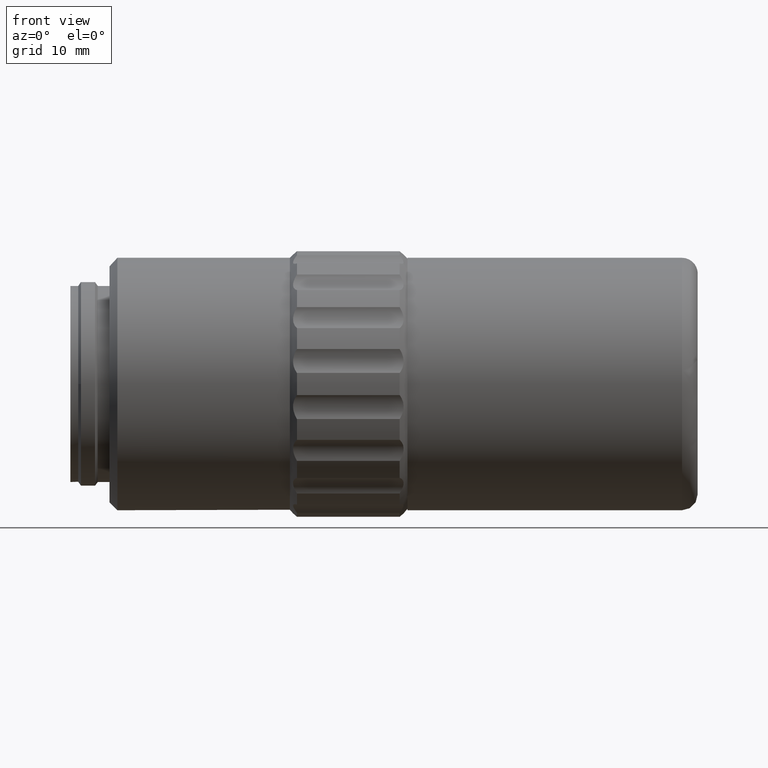
[diagram: clean part render]
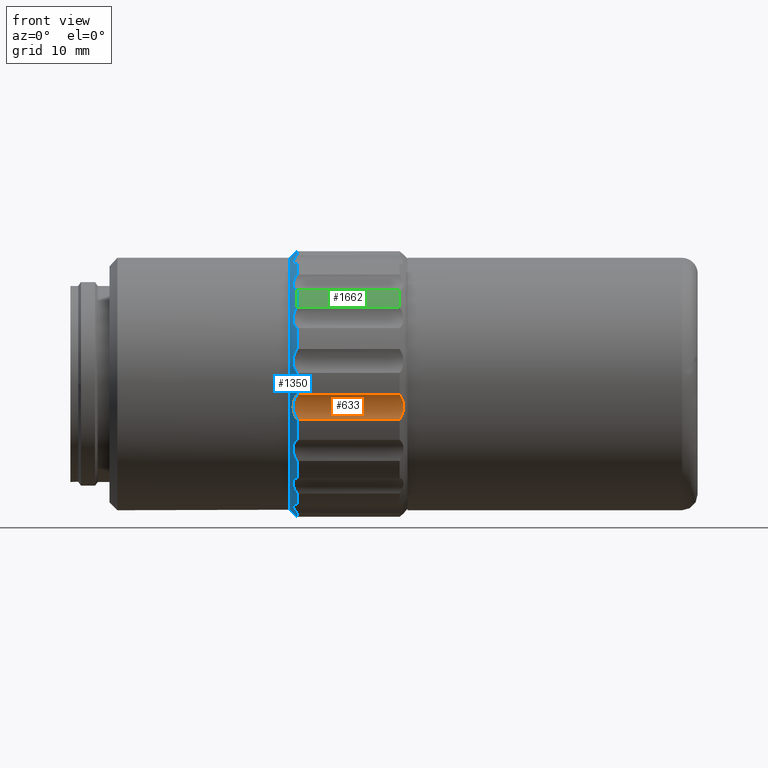
[diagram: same view with three faces highlighted in distinct colors, each labeled with its STEP entity id]
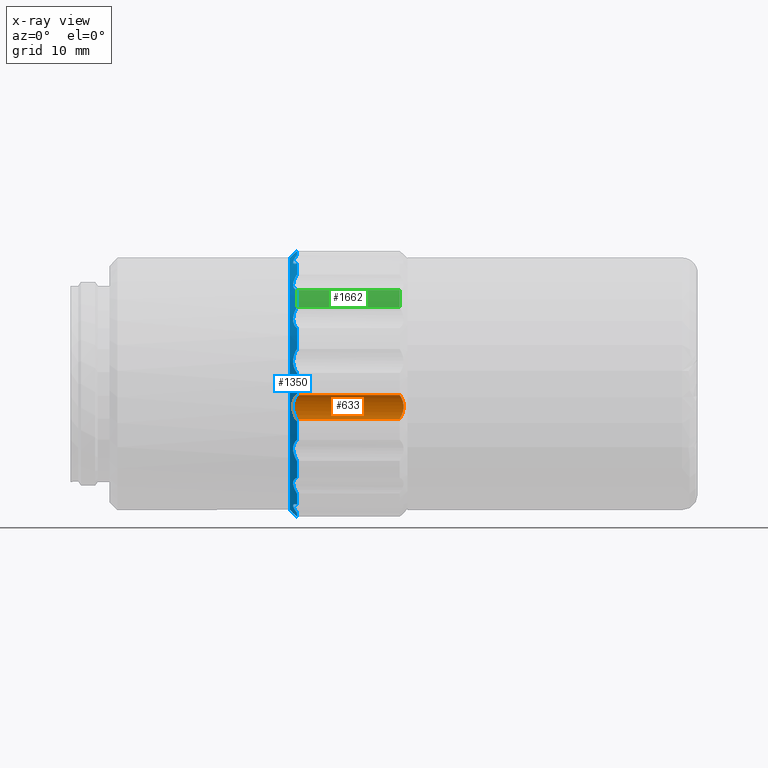
[diagram: x-ray of the same camera — body ghosted, the three highlighted faces saturated]
A machine part, front view with three faces highlighted in distinct colors.
The next image is the same camera in x-ray (body ghosted, the three faces saturated) — at least one of them is partly hidden behind the body in this view.
Their STEP definitions:

[orange] entity #633 — the highlighted cylindrical surface (edge-blend (fillet) strip) has radius 3 mm, axis along (-1, 0, 0).
#31 = CARTESIAN_POINT ( 'NONE',  ( 18.94098152749741359, 29.57133557555759751, -2.188910012077406542 ) ) ;
#46 = VECTOR ( 'NONE', #1302, 1000.000000000000000 ) ;
#66 = B_SPLINE_CURVE_WITH_KNOTS ( 'NONE', 3,
 ( #1647, #1349, #1667, #1201, #1677, #2016, #872, #1824, #720, #848, #31, #1512, #883, #1524 ),
 .UNSPECIFIED., .F., .F.,
 ( 4, 2, 2, 2, 2, 2, 4 ),
 ( 1.514782153580211930E-17, 0.0008570537395405600656, 0.001285580609310832184, 0.001714107479081104302, 0.002142634348851376637, 0.002571161218621648321, 0.003428214958162189522 ),
 .UNSPECIFIED. ) ;
#87 = CARTESIAN_POINT ( 'NONE',  ( 32.93501117040976567, 29.81087088656429884, -3.145384777659983033 ) ) ;
#198 = CARTESIAN_POINT ( 'NONE',  ( 32.44685803487877251, 29.08007986503451647, -1.416514203673299832 ) ) ;
#237 = CARTESIAN_POINT ( 'NONE',  ( 32.71832649179921759, 29.38953693794697131, -1.818341456876848783 ) ) ;
#248 = CYLINDRICAL_SURFACE ( 'NONE', #1567, 3.000000000000000000 ) ;
#256 = CARTESIAN_POINT ( 'NONE',  ( 32.44685803487880804, 29.61726367720594766, -4.463034991433898035 ) ) ;
#361 = VERTEX_POINT ( 'NONE', #198 ) ;
#525 = VERTEX_POINT ( 'NONE', #1003 ) ;
#594 = CARTESIAN_POINT ( 'NONE',  ( 32.85210940846931749, 29.57040993796760020, -2.186719745017569050 ) ) ;
#606 = CARTESIAN_POINT ( 'NONE',  ( 32.85273454226017975, 29.81471811820888362, -3.569201001427910303 ) ) ;
#633 = ADVANCED_FACE ( 'NONE', ( #1867 ), #248, .F. ) ;
#655 = EDGE_CURVE ( 'NONE', #361, #726, #669, .T. ) ;
#669 = B_SPLINE_CURVE_WITH_KNOTS ( 'NONE', 3,
 ( #1055, #1702, #237, #594, #1554, #1719, #2075, #2062, #87, #1544, #606, #1387, #1255, #920 ),
 .UNSPECIFIED., .F., .F.,
 ( 4, 2, 2, 2, 2, 2, 4 ),
 ( 9.986437839578378192E-18, 0.0008570537395405388153, 0.001285580609310806380, 0.001714107479081073727, 0.002142634348851341075, 0.002571161218621608856, 0.003428214958162145286 ),
 .UNSPECIFIED. ) ;
#720 = CARTESIAN_POINT ( 'NONE',  ( 18.85870489934783123, 29.71267404596758155, -2.588482820839966614 ) ) ;
#726 = VERTEX_POINT ( 'NONE', #256 ) ;
#748 = CARTESIAN_POINT ( 'NONE',  ( 25.94685803487879738, 29.61726367720595121, -4.463034991433957543 ) ) ;
#848 = CARTESIAN_POINT ( 'NONE',  ( 18.90565193394954946, 29.62488855559159973, -2.319880045867564800 ) ) ;
#872 = CARTESIAN_POINT ( 'NONE',  ( 18.84700383090778431, 29.79689300327163792, -3.009155866290937009 ) ) ;
#874 = CARTESIAN_POINT ( 'NONE',  ( 53.58686043487880823, 26.81721081626189829, -3.386139464505140140 ) ) ;
#883 = CARTESIAN_POINT ( 'NONE',  ( 19.19974036611872847, 29.24340012357268748, -1.604150078087035247 ) ) ;
#920 = CARTESIAN_POINT ( 'NONE',  ( 32.44685803487880804, 29.61726367720594766, -4.463034991433898035 ) ) ;
#922 = DIRECTION ( 'NONE',  ( -1.000000000000000000, 0.000000000000000000, 0.000000000000000000 ) ) ;
#990 = ORIENTED_EDGE ( 'NONE', *, *, #1498, .F. ) ;
#1003 = CARTESIAN_POINT ( 'NONE',  ( 19.34685803487881728, 29.08007986503450581, -1.416514203673286065 ) ) ;
#1009 = ORIENTED_EDGE ( 'NONE', *, *, #655, .F. ) ;
#1046 = DIRECTION ( 'NONE',  ( 0.000000000000000000, 0.000000000000000000, 1.000000000000000000 ) ) ;
#1055 = CARTESIAN_POINT ( 'NONE',  ( 32.44685803487877251, 29.08007986503451647, -1.416514203673299832 ) ) ;
#1115 = EDGE_CURVE ( 'NONE', #525, #361, #1122, .T. ) ;
#1122 = LINE ( 'NONE', #1791, #46 ) ;
#1201 = CARTESIAN_POINT ( 'NONE',  ( 18.94160666128827941, 29.81459741884976822, -3.571575765922806678 ) ) ;
#1255 = CARTESIAN_POINT ( 'NONE',  ( 32.59397570363888974, 29.70655927031907595, -4.230856126619375601 ) ) ;
#1263 = CARTESIAN_POINT ( 'NONE',  ( 19.34685803487881017, 29.61726367720593345, -4.463034991433935339 ) ) ;
#1291 = EDGE_CURVE ( 'NONE', #1593, #525, #66, .T. ) ;
#1299 = ORIENTED_EDGE ( 'NONE', *, *, #1291, .F. ) ;
#1302 = DIRECTION ( 'NONE',  ( 1.000000000000000000, -0.000000000000000000, -0.000000000000000000 ) ) ;
#1349 = CARTESIAN_POINT ( 'NONE',  ( 19.20000062573679855, 29.70640130127867096, -4.231266864385912818 ) ) ;
#1358 = VECTOR ( 'NONE', #922, 1000.000000000000000 ) ;
#1387 = CARTESIAN_POINT ( 'NONE',  ( 32.71993598786256285, 29.77132104384358158, -3.975612932441852099 ) ) ;
#1498 = EDGE_CURVE ( 'NONE', #726, #1593, #2026, .T. ) ;
#1499 = EDGE_LOOP ( 'NONE', ( #1009, #1926, #1299, #990 ) ) ;
#1512 = CARTESIAN_POINT ( 'NONE',  ( 19.07378008189505891, 29.39155459811816229, -1.821850393098590537 ) ) ;
#1524 = CARTESIAN_POINT ( 'NONE',  ( 19.34685803487881728, 29.08007986503450581, -1.416514203673286065 ) ) ;
#1544 = CARTESIAN_POINT ( 'NONE',  ( 32.88806413580805810, 29.82024706863964880, -3.427813229224472291 ) ) ;
#1554 = CARTESIAN_POINT ( 'NONE',  ( 32.88671825240740532, 29.62277607563510173, -2.314480119284870518 ) ) ;
#1567 = AXIS2_PLACEMENT_3D ( 'NONE', #874, #1839, #1046 ) ;
#1593 = VERTEX_POINT ( 'NONE', #1263 ) ;
#1647 = CARTESIAN_POINT ( 'NONE',  ( 19.34685803487881017, 29.61726367720593345, -4.463034991433935339 ) ) ;
#1667 = CARTESIAN_POINT ( 'NONE',  ( 19.07538957795835444, 29.77062519033893651, -3.979600334337186407 ) ) ;
#1677 = CARTESIAN_POINT ( 'NONE',  ( 18.90699781735017737, 29.82010887047673009, -3.433610011084523794 ) ) ;
#1702 = CARTESIAN_POINT ( 'NONE',  ( 32.59371544402079479, 29.24311120064134784, -1.603818139432597878 ) ) ;
#1719 = CARTESIAN_POINT ( 'NONE',  ( 32.93404516599887444, 29.71048298862090320, -2.580766064489512512 ) ) ;
#1791 = CARTESIAN_POINT ( 'NONE',  ( 53.58686043487880823, 29.08007986503449871, -1.416514203673273409 ) ) ;
#1824 = CARTESIAN_POINT ( 'NONE',  ( 18.84671480941285537, 29.74726016049911692, -2.726265681694555187 ) ) ;
#1839 = DIRECTION ( 'NONE',  ( -1.000000000000000000, 0.000000000000000000, 0.000000000000000000 ) ) ;
#1867 = FACE_OUTER_BOUND ( 'NONE', #1499, .T. ) ;
#1926 = ORIENTED_EDGE ( 'NONE', *, *, #1115, .F. ) ;
#2016 = CARTESIAN_POINT ( 'NONE',  ( 18.85967090375870825, 29.81145125225689441, -3.153385542406657915 ) ) ;
#2026 = LINE ( 'NONE', #748, #1358 ) ;
#2062 = CARTESIAN_POINT ( 'NONE',  ( 32.94700126034471310, 29.79624668935391441, -3.004082092195002662 ) ) ;
#2075 = CARTESIAN_POINT ( 'NONE',  ( 32.94671223884979838, 29.74613216397480997, -2.721276841238304378 ) ) ;

[blue] entity #1350 — the highlighted conical surface has half-angle 45 deg.
#4 = AXIS2_PLACEMENT_3D ( 'NONE', #1645, #1620, #160 ) ;
#11 = CARTESIAN_POINT ( 'NONE',  ( 18.84700383090777365, 29.74613216397480642, 2.721276841238314592 ) ) ;
#14 = CARTESIAN_POINT ( 'NONE',  ( 19.34685803487881017, 61.45570754086770648, -7.125210880294338800 ) ) ;
#16 = EDGE_CURVE ( 'NONE', #192, #1939, #2033, .T. ) ;
#17 = ORIENTED_EDGE ( 'NONE', *, *, #432, .T. ) ;
#23 = CARTESIAN_POINT ( 'NONE',  ( 19.34685803487881728, 41.68421451916362486, 16.43753695927285108 ) ) ;
#24 = B_SPLINE_CURVE_WITH_KNOTS ( 'NONE', 3,
 ( #2013, #1048, #231, #733, #889, #1384, #1528, #2020, #564, #910, #1742, #1391, #251, #424 ),
 .UNSPECIFIED., .F., .F.,
 ( 4, 2, 2, 2, 2, 2, 4 ),
 ( 0.000000000000000000, 0.0008570537395405729677, 0.001285580609310859506, 0.001714107479081145935, 0.002142634348851432148, 0.002571161218621719011, 0.003428214958162278860 ),
 .UNSPECIFIED. ) ;
#25 = CARTESIAN_POINT ( 'NONE',  ( 18.94098152749737451, 46.72175410136633644, 16.57981987161946691 ) ) ;
#31 = CARTESIAN_POINT ( 'NONE',  ( 18.94098152749741359, 29.57133557555759751, -2.188910012077406542 ) ) ;
#33 = CARTESIAN_POINT ( 'NONE',  ( 18.44685803487879738, 46.02096199999999726, 0.000000000000000000 ) ) ;
#34 = EDGE_CURVE ( 'NONE', #1644, #948, #1272, .T. ) ;
#35 = CARTESIAN_POINT ( 'NONE',  ( 19.34685803487878175, 41.68421451916363907, -16.43753695927278713 ) ) ;
#37 = CARTESIAN_POINT ( 'NONE',  ( 18.90565193394954235, 60.63478551978838738, 7.787761549644985237 ) ) ;
#47 = CARTESIAN_POINT ( 'NONE',  ( 19.34685803487878886, 55.71814035268526766, -13.96297718956139278 ) ) ;
#52 = VERTEX_POINT ( 'NONE', #1519 ) ;
#53 = CARTESIAN_POINT ( 'NONE',  ( 18.94160666128825099, 46.72407182862871622, -16.58035111081103352 ) ) ;
#56 = EDGE_CURVE ( 'NONE', #1637, #1922, #1729, .T. ) ;
#65 = CARTESIAN_POINT ( 'NONE',  ( 18.84671480941278787, 40.24512641806278879, -15.45657204746853353 ) ) ;
#66 = B_SPLINE_CURVE_WITH_KNOTS ( 'NONE', 3,
 ( #1647, #1349, #1667, #1201, #1677, #2016, #872, #1824, #720, #848, #31, #1512, #883, #1524 ),
 .UNSPECIFIED., .F., .F.,
 ( 4, 2, 2, 2, 2, 2, 4 ),
 ( 1.514782153580211930E-17, 0.0008570537395405600656, 0.001285580609310832184, 0.001714107479081104302, 0.002142634348851376637, 0.002571161218621648321, 0.003428214958162189522 ),
 .UNSPECIFIED. ) ;
#69 = CARTESIAN_POINT ( 'NONE',  ( 19.34685803487879596, 46.02096199999999726, 0.000000000000000000 ) ) ;
#72 = CARTESIAN_POINT ( 'NONE',  ( 18.84700383090778786, 60.38356800619005327, -8.123483399945444106 ) ) ;
#75 = CARTESIAN_POINT ( 'NONE',  ( 19.34685803487882438, 59.90894840009008959, -9.804276299192844490 ) ) ;
#76 = DIRECTION ( 'NONE',  ( 0.000000000000000000, -1.061242597068164396E-14, 1.000000000000000000 ) ) ;
#77 = CARTESIAN_POINT ( 'NONE',  ( 18.90565193394954946, 62.41703544440839835, 2.319880045867563467 ) ) ;
#78 = CARTESIAN_POINT ( 'NONE',  ( 19.20000062573676658, 55.79883465147822363, 13.72813594343331900 ) ) ;
#81 = CARTESIAN_POINT ( 'NONE',  ( 18.84700383090775588, 35.52685220674475630, -12.73377765964754893 ) ) ;
#84 = FACE_BOUND ( 'NONE', #1792, .T. ) ;
#85 = CARTESIAN_POINT ( 'NONE',  ( 18.85967090375870825, 62.23047274774310722, 3.153385542406657915 ) ) ;
#86 = B_SPLINE_CURVE_WITH_KNOTS ( 'NONE', 3,
 ( #1136, #1092, #1598, #288, #1943, #2053, #1781, #770, #1425, #1404, #141, #1611, #609, #1923 ),
 .UNSPECIFIED., .F., .F.,
 ( 4, 2, 2, 2, 2, 2, 4 ),
 ( 4.906538933386797396E-18, 0.0008570537395405932422, 0.001285580609310881190, 0.001714107479081169137, 0.002142634348851456434, 0.002571161218621744165, 0.003428214958162342178 ),
 .UNSPECIFIED. ) ;
#89 = CARTESIAN_POINT ( 'NONE',  ( 18.90699781735015961, 34.94694193895058731, 12.31354536760547447 ) ) ;
#102 = CARTESIAN_POINT ( 'NONE',  ( 18.90565193394945709, 31.40713848021169241, -7.787761549644949710 ) ) ;
#109 = CARTESIAN_POINT ( 'NONE',  ( 18.90699781735014895, 39.82626761767229340, 15.35848564612280498 ) ) ;
#112 = B_SPLINE_CURVE_WITH_KNOTS ( 'NONE', 3,
 ( #1672, #219, #208, #866, #1376, #188, #357, #1150, #1316, #656, #1970, #1639, #1794, #47 ),
 .UNSPECIFIED., .F., .F.,
 ( 4, 2, 2, 2, 2, 2, 4 ),
 ( 7.949501638480626889E-18, 0.0008570537395405634267, 0.001285580609310841291, 0.001714107479081119047, 0.002142634348851396586, 0.002571161218621674342, 0.003428214958162214675 ),
 .UNSPECIFIED. ) ;
#114 = EDGE_CURVE ( 'NONE', #169, #689, #24, .T. ) ;
#115 = CARTESIAN_POINT ( 'NONE',  ( 18.85870489934780991, 56.84999067884827895, 12.46565831306566352 ) ) ;
#127 = VERTEX_POINT ( 'NONE', #1723 ) ;
#141 = CARTESIAN_POINT ( 'NONE',  ( 18.94098152749734965, 52.35012353516404460, 15.34024937236955033 ) ) ;
#160 = DIRECTION ( 'NONE',  ( 0.000000000000000000, 0.000000000000000000, 1.000000000000000000 ) ) ;
#163 = VERTEX_POINT ( 'NONE', #1565 ) ;
#168 = CARTESIAN_POINT ( 'NONE',  ( 19.07538957795836509, 59.93018010859524480, 9.297543592584476713 ) ) ;
#169 = VERTEX_POINT ( 'NONE', #454 ) ;
#171 = ORIENTED_EDGE ( 'NONE', *, *, #1646, .T. ) ;
#177 = CARTESIAN_POINT ( 'NONE',  ( 18.90699781735014895, 45.45276486285488460, 16.55096588861032458 ) ) ;
#179 = CARTESIAN_POINT ( 'NONE',  ( 19.34685803487879596, 46.02096199999999726, 0.000000000000000000 ) ) ;
#186 = DIRECTION ( 'NONE',  ( 1.000000000000000000, 0.000000000000000000, 0.000000000000000000 ) ) ;
#188 = CARTESIAN_POINT ( 'NONE',  ( 18.85967090375868338, 56.85662936152230884, -12.46115531925904740 ) ) ;
#192 = VERTEX_POINT ( 'NONE', #1912 ) ;
#199 = CARTESIAN_POINT ( 'NONE',  ( 19.20000062573681632, 59.90445580054583274, 9.555998637511375904 ) ) ;
#201 = ORIENTED_EDGE ( 'NONE', *, *, #1490, .T. ) ;
#208 = CARTESIAN_POINT ( 'NONE',  ( 19.07538957795833667, 57.59256539127559904, -12.08340433005123060 ) ) ;
#209 = CARTESIAN_POINT ( 'NONE',  ( 18.84700383090778786, 60.23740799466897755, 8.376639965934806753 ) ) ;
#212 = CIRCLE ( 'NONE', #2017, 17.00000000000000000 ) ;
#216 = CARTESIAN_POINT ( 'NONE',  ( 18.94160666128827231, 62.22732658115023696, 3.571575765922809342 ) ) ;
#217 = B_SPLINE_CURVE_WITH_KNOTS ( 'NONE', 3,
 ( #1555, #78, #1090, #1896, #1081, #730, #2052, #1229, #115, #1736, #1381, #1413, #1403, #2036 ),
 .UNSPECIFIED., .F., .F.,
 ( 4, 2, 2, 2, 2, 2, 4 ),
 ( 3.469446951953614189E-18, 0.0008570537395405549699, 0.001285580609310832184, 0.001714107479081109506, 0.002142634348851387045, 0.002571161218621663934, 0.003428214958162216410 ),
 .UNSPECIFIED. ) ;
#219 = CARTESIAN_POINT ( 'NONE',  ( 19.20000062573680211, 57.84262694411021499, -12.01319058448290278 ) ) ;
#220 = CARTESIAN_POINT ( 'NONE',  ( 18.90565193394951393, 34.95203119838301831, -12.31632407541565755 ) ) ;
#221 = CARTESIAN_POINT ( 'NONE',  ( 19.07378008189506247, 59.93088999195954614, -9.293558664531964553 ) ) ;
#231 = CARTESIAN_POINT ( 'NONE',  ( 19.07538957795832602, 52.76194463661676082, -15.31240733331347670 ) ) ;
#234 = DIRECTION ( 'NONE',  ( 1.000000000000000000, -0.000000000000000000, -0.000000000000000000 ) ) ;
#235 = CARTESIAN_POINT ( 'NONE',  ( 19.34685803487881017, 62.42466032279406107, 4.463034991433929122 ) ) ;
#240 = CARTESIAN_POINT ( 'NONE',  ( 19.20000062573676658, 36.24308934852177799, -13.72813594343331900 ) ) ;
#241 = DIRECTION ( 'NONE',  ( 1.000000000000000000, -0.000000000000000000, -0.000000000000000000 ) ) ;
#249 = CIRCLE ( 'NONE', #1608, 17.00000000000000000 ) ;
#251 = CARTESIAN_POINT ( 'NONE',  ( 19.19974036611866097, 50.51413447943100010, -16.24411527478352468 ) ) ;
#259 = CARTESIAN_POINT ( 'NONE',  ( 19.34685803487880307, 47.56772114077768521, 16.92948717948718595 ) ) ;
#263 = AXIS2_PLACEMENT_3D ( 'NONE', #374, #241, #573 ) ;
#267 = CARTESIAN_POINT ( 'NONE',  ( 18.85967090375863009, 31.86752573897104313, -8.507192313874572420 ) ) ;
#275 = CARTESIAN_POINT ( 'NONE',  ( 19.34685803487881017, 32.13297559990991914, 9.804276299192830280 ) ) ;
#288 = CARTESIAN_POINT ( 'NONE',  ( 18.94160666128821546, 51.03106894574500529, 15.82091131322982669 ) ) ;
#292 = VERTEX_POINT ( 'NONE', #1934 ) ;
#293 = VERTEX_POINT ( 'NONE', #1651 ) ;
#301 = CARTESIAN_POINT ( 'NONE',  ( 19.19974036611871782, 41.52778952056896600, 16.24411527478357797 ) ) ;
#302 = ORIENTED_EDGE ( 'NONE', *, *, #994, .F. ) ;
#303 = ORIENTED_EDGE ( 'NONE', *, *, #923, .F. ) ;
#308 = AXIS2_PLACEMENT_3D ( 'NONE', #69, #2018, #397 ) ;
#311 = CARTESIAN_POINT ( 'NONE',  ( 18.94098152749739583, 41.00885879755391983, 15.81961940227120600 ) ) ;
#312 = VERTEX_POINT ( 'NONE', #1449 ) ;
#326 = VERTEX_POINT ( 'NONE', #1602 ) ;
#329 = CARTESIAN_POINT ( 'NONE',  ( 19.34685803487879596, 46.02096199999999726, 0.000000000000000000 ) ) ;
#339 = EDGE_CURVE ( 'NONE', #340, #1774, #399, .T. ) ;
#340 = VERTEX_POINT ( 'NONE', #1516 ) ;
#342 = CONICAL_SURFACE ( 'NONE', #1904, 17.00000000000002132, 0.7853981633974482790 ) ;
#346 = CARTESIAN_POINT ( 'NONE',  ( 18.85870489934783123, 29.81087088656429884, 3.145384777660000353 ) ) ;
#353 = CARTESIAN_POINT ( 'NONE',  ( 19.34685803487879596, 46.02096199999999726, 0.000000000000000000 ) ) ;
#355 = ORIENTED_EDGE ( 'NONE', *, *, #1601, .F. ) ;
#357 = CARTESIAN_POINT ( 'NONE',  ( 18.84700383090775944, 56.73900192251910113, -12.54587797077276257 ) ) ;
#363 = CIRCLE ( 'NONE', #2093, 16.10000000000000142 ) ;
#364 = CARTESIAN_POINT ( 'NONE',  ( 18.84700383090771325, 40.51493292579078798, -15.55503383706367870 ) ) ;
#374 = CARTESIAN_POINT ( 'NONE',  ( 19.34685803487879596, 46.02096199999999726, 0.000000000000000000 ) ) ;
#376 = CARTESIAN_POINT ( 'NONE',  ( 19.34685803487881017, 47.56772114077768521, -16.92948717948718951 ) ) ;
#378 = CARTESIAN_POINT ( 'NONE',  ( 18.85870489934783123, 62.32924995403242008, 2.588482820839966614 ) ) ;
#379 = CARTESIAN_POINT ( 'NONE',  ( 19.34685803487881017, 47.56772114077768521, -16.92948717948718951 ) ) ;
#387 = CARTESIAN_POINT ( 'NONE',  ( 19.20000062573674526, 41.52806624538894908, -16.24445744886878629 ) ) ;
#388 = DIRECTION ( 'NONE',  ( 1.000000000000000000, -0.000000000000000000, -0.000000000000000000 ) ) ;
#392 = CARTESIAN_POINT ( 'NONE',  ( 18.94160666128828296, 60.73152217994228153, -7.681264582162548926 ) ) ;
#397 = DIRECTION ( 'NONE',  ( 0.000000000000000000, -1.591863895602246436E-14, 1.000000000000000000 ) ) ;
#399 = B_SPLINE_CURVE_WITH_KNOTS ( 'NONE', 3,
 ( #1946, #1485, #1139, #668, #177, #1783, #832, #1475, #1317, #1163, #25, #1195, #1016, #876 ),
 .UNSPECIFIED., .F., .F.,
 ( 4, 2, 2, 2, 2, 2, 4 ),
 ( 3.469446951953613804E-18, 0.0008570537395405930254, 0.001285580609310878154, 0.001714107479081163283, 0.002142634348851448628, 0.002571161218621733323, 0.003428214958162322228 ),
 .UNSPECIFIED. ) ;
#401 = CARTESIAN_POINT ( 'NONE',  ( 18.90699781735015605, 35.81747045796282691, -13.04400552683793713 ) ) ;
#402 = CARTESIAN_POINT ( 'NONE',  ( 18.90699781735018803, 60.63861748527882156, -7.783409789179927429 ) ) ;
#404 = ORIENTED_EDGE ( 'NONE', *, *, #1784, .T. ) ;
#406 = DIRECTION ( 'NONE',  ( 0.000000000000000000, 0.000000000000000000, -1.000000000000000000 ) ) ;
#408 = CARTESIAN_POINT ( 'NONE',  ( 18.90699781735018448, 62.22181512952326443, 3.433610011084525571 ) ) ;
#415 = CARTESIAN_POINT ( 'NONE',  ( 19.20000062573680566, 61.23844647888725490, -7.245459005800721108 ) ) ;
#418 = DIRECTION ( 'NONE',  ( 1.000000000000000000, -0.000000000000000000, 0.000000000000000000 ) ) ;
#419 = CARTESIAN_POINT ( 'NONE',  ( 18.84671480941285893, 62.29466383950088471, 2.726265681694554743 ) ) ;
#423 = CARTESIAN_POINT ( 'NONE',  ( 19.07378008189503760, 34.45315972681315486, -12.08479540418656484 ) ) ;
#424 = CARTESIAN_POINT ( 'NONE',  ( 19.34685803487878175, 50.35770948083634124, -16.43753695927276937 ) ) ;
#426 = CARTESIAN_POINT ( 'NONE',  ( 18.90565193394950327, 45.45844958071402431, -16.54982318938171559 ) ) ;
#432 = EDGE_CURVE ( 'NONE', #450, #1399, #112, .T. ) ;
#436 = CARTESIAN_POINT ( 'NONE',  ( 18.90565193394951393, 40.88917787025663841, 15.74413730464017647 ) ) ;
#438 = B_SPLINE_CURVE_WITH_KNOTS ( 'NONE', 3,
 ( #618, #1064, #905, #1089, #1895, #587, #1237, #1401, #1266, #1883, #1080, #1727, #1735, #275 ),
 .UNSPECIFIED., .F., .F.,
 ( 4, 2, 2, 2, 2, 2, 4 ),
 ( 8.887813025444319855E-18, 0.0008570537395405515005, 0.001285580609310827847, 0.001714107479081106254, 0.002142634348851384877, 0.002571161218621663067, 0.003428214958162207303 ),
 .UNSPECIFIED. ) ;
#450 = VERTEX_POINT ( 'NONE', #510 ) ;
#453 = CARTESIAN_POINT ( 'NONE',  ( 18.94160666128827231, 62.47151406203237656, -2.186719745017577043 ) ) ;
#454 = CARTESIAN_POINT ( 'NONE',  ( 19.34685803487879596, 53.26466578228018989, -15.37949139323468017 ) ) ;
#457 = VERTEX_POINT ( 'NONE', #35 ) ;
#476 = CARTESIAN_POINT ( 'NONE',  ( 18.85870489934780281, 40.63989956541260540, 15.61104309072567098 ) ) ;
#477 = ORIENTED_EDGE ( 'NONE', *, *, #1589, .T. ) ;
#484 = CARTESIAN_POINT ( 'NONE',  ( 19.07378008189504826, 62.27060295615642360, -3.975612932441878744 ) ) ;
#489 = ORIENTED_EDGE ( 'NONE', *, *, #1653, .F. ) ;
#501 = CARTESIAN_POINT ( 'NONE',  ( 19.34685803487881728, 59.90894840009004696, 9.804276299192840938 ) ) ;
#505 = ORIENTED_EDGE ( 'NONE', *, *, #1271, .T. ) ;
#509 = CARTESIAN_POINT ( 'NONE',  ( 19.07538957795835088, 29.38953693794697841, 1.818341456876844786 ) ) ;
#510 = CARTESIAN_POINT ( 'NONE',  ( 19.34685803487880307, 58.08791284195767446, -11.97450196783888110 ) ) ;
#514 = VERTEX_POINT ( 'NONE', #23 ) ;
#525 = VERTEX_POINT ( 'NONE', #1003 ) ;
#526 = CIRCLE ( 'NONE', #1539, 17.00000000000000000 ) ;
#527 = ORIENTED_EDGE ( 'NONE', *, *, #114, .T. ) ;
#528 = CARTESIAN_POINT ( 'NONE',  ( 19.34685803487878175, 41.68421451916363907, -16.43753695927278713 ) ) ;
#531 = ORIENTED_EDGE ( 'NONE', *, *, #2094, .T. ) ;
#546 = CARTESIAN_POINT ( 'NONE',  ( 18.84671480941283406, 35.30699293778216941, -12.54897458209228844 ) ) ;
#548 = CARTESIAN_POINT ( 'NONE',  ( 19.07538957795836509, 61.02747999826901548, -7.396964432529753886 ) ) ;
#550 = ORIENTED_EDGE ( 'NONE', *, *, #1906, .T. ) ;
#551 = DIRECTION ( 'NONE',  ( 1.000000000000000000, -0.000000000000000000, -0.000000000000000000 ) ) ;
#555 = CARTESIAN_POINT ( 'NONE',  ( 19.07538957795832246, 36.13051957456375618, -13.49406587643664501 ) ) ;
#559 = CARTESIAN_POINT ( 'NONE',  ( 18.94160666128820125, 41.01085505425493949, -15.82091131322980715 ) ) ;
#564 = CARTESIAN_POINT ( 'NONE',  ( 18.85870489934776018, 51.40202443458736070, -15.61104309072563190 ) ) ;
#572 = CARTESIAN_POINT ( 'NONE',  ( 18.94098152749737807, 35.90049711072168037, 13.15133936029216422 ) ) ;
#573 = DIRECTION ( 'NONE',  ( 0.000000000000000000, 0.000000000000000000, 1.000000000000000000 ) ) ;
#580 = EDGE_CURVE ( 'NONE', #326, #1774, #1149, .T. ) ;
#586 = CARTESIAN_POINT ( 'NONE',  ( 19.34685803487881017, 62.96184413496550292, 1.416514203673278960 ) ) ;
#587 = CARTESIAN_POINT ( 'NONE',  ( 18.85967090375871180, 31.57679921079038721, 8.003639195957687136 ) ) ;
#601 = AXIS2_PLACEMENT_3D ( 'NONE', #779, #1596, #652 ) ;
#609 = CARTESIAN_POINT ( 'NONE',  ( 19.19974036611868229, 53.02050821910749079, 15.33186983759483724 ) ) ;
#618 = CARTESIAN_POINT ( 'NONE',  ( 19.34685803487881017, 30.58621645913229514, 7.125210880294345905 ) ) ;
#625 = ORIENTED_EDGE ( 'NONE', *, *, #16, .F. ) ;
#635 = CIRCLE ( 'NONE', #2057, 17.00000000000000000 ) ;
#638 = VERTEX_POINT ( 'NONE', #379 ) ;
#642 = CARTESIAN_POINT ( 'NONE',  ( 19.34685803487880307, 58.08791284195768867, 11.97450196783888821 ) ) ;
#644 = CARTESIAN_POINT ( 'NONE',  ( 19.19974036611872137, 62.33536472968093278, -4.230856126619383595 ) ) ;
#648 = ORIENTED_EDGE ( 'NONE', *, *, #1020, .T. ) ;
#651 = DIRECTION ( 'NONE',  ( 0.000000000000000000, 8.163404592832033571E-15, 1.000000000000000000 ) ) ;
#652 = DIRECTION ( 'NONE',  ( 0.000000000000000000, 9.796085511398439970E-15, 1.000000000000000000 ) ) ;
#656 = CARTESIAN_POINT ( 'NONE',  ( 18.90565193394950683, 56.22807377565811748, -13.03947610223928244 ) ) ;
#657 = AXIS2_PLACEMENT_3D ( 'NONE', #329, #1801, #2084 ) ;
#661 = ORIENTED_EDGE ( 'NONE', *, *, #1429, .T. ) ;
#668 = CARTESIAN_POINT ( 'NONE',  ( 18.94160666128825099, 45.31785217137125699, 16.58035111081102997 ) ) ;
#671 = ORIENTED_EDGE ( 'NONE', *, *, #843, .F. ) ;
#678 = CARTESIAN_POINT ( 'NONE',  ( 18.90699781735018092, 29.62277607563511239, 2.314480119284873627 ) ) ;
#681 = CARTESIAN_POINT ( 'NONE',  ( 19.34685803487878175, 32.13297559991000441, -9.804276299192858701 ) ) ;
#689 = VERTEX_POINT ( 'NONE', #738 ) ;
#697 = DIRECTION ( 'NONE',  ( 1.000000000000000000, -0.000000000000000000, -0.000000000000000000 ) ) ;
#699 = CARTESIAN_POINT ( 'NONE',  ( 18.84671480941285537, 29.79624668935392506, 3.004082092195018650 ) ) ;
#702 = B_SPLINE_CURVE_WITH_KNOTS ( 'NONE', 3,
 ( #745, #1053, #1699, #892, #739, #267, #1066, #768, #1573, #102, #2063, #1388, #1747, #1238 ),
 .UNSPECIFIED., .F., .F.,
 ( 4, 2, 2, 2, 2, 2, 4 ),
 ( 3.469446951953614189E-18, 0.0008570537395405861949, 0.001285580609310878371, 0.001714107479081170438, 0.002142634348851462506, 0.002571161218621756742, 0.003428214958162340443 ),
 .UNSPECIFIED. ) ;
#708 = AXIS2_PLACEMENT_3D ( 'NONE', #1947, #1154, #1992 ) ;
#709 = CARTESIAN_POINT ( 'NONE',  ( 18.90699781735015250, 46.58915913714510992, -16.55096588861032814 ) ) ;
#712 = CIRCLE ( 'NONE', #1725, 17.00000000000000000 ) ;
#718 = VERTEX_POINT ( 'NONE', #1073 ) ;
#719 = CARTESIAN_POINT ( 'NONE',  ( 18.85870489934777439, 40.10850990309084096, -15.41763307084374190 ) ) ;
#720 = CARTESIAN_POINT ( 'NONE',  ( 18.85870489934783123, 29.71267404596758155, -2.588482820839966614 ) ) ;
#724 = DIRECTION ( 'NONE',  ( 1.000000000000000000, -0.000000000000000000, -0.000000000000000000 ) ) ;
#725 = DIRECTION ( 'NONE',  ( 1.000000000000000000, -0.000000000000000000, -0.000000000000000000 ) ) ;
#730 = CARTESIAN_POINT ( 'NONE',  ( 18.85967090375867983, 56.41121047876222860, 12.83490613950239023 ) ) ;
#732 = CARTESIAN_POINT ( 'NONE',  ( 19.34685803487880307, 33.95401115804230585, -11.97450196783888821 ) ) ;
#733 = CARTESIAN_POINT ( 'NONE',  ( 18.94160666128823678, 52.35248318087396058, -15.33995586450727266 ) ) ;
#738 = CARTESIAN_POINT ( 'NONE',  ( 19.34685803487878175, 50.35770948083634124, -16.43753695927276937 ) ) ;
#739 = CARTESIAN_POINT ( 'NONE',  ( 18.90699781735010632, 31.97150365186636378, -8.767556099430423799 ) ) ;
#740 = CARTESIAN_POINT ( 'NONE',  ( 18.84700383090775588, 35.30292207748090760, 12.54587797077276079 ) ) ;
#743 = EDGE_CURVE ( 'NONE', #1686, #127, #438, .T. ) ;
#745 = CARTESIAN_POINT ( 'NONE',  ( 19.34685803487878175, 32.13297559991000441, -9.804276299192858701 ) ) ;
#768 = CARTESIAN_POINT ( 'NONE',  ( 18.84671480941278077, 31.66112224774806450, -8.127785578975515790 ) ) ;
#770 = CARTESIAN_POINT ( 'NONE',  ( 18.84671480941278787, 51.79679758193721284, 15.45657204746854241 ) ) ;
#772 = AXIS2_PLACEMENT_3D ( 'NONE', #1732, #786, #2058 ) ;
#775 = CARTESIAN_POINT ( 'NONE',  ( 19.07378008189504470, 41.33912331703041332, 16.06040833662847689 ) ) ;
#779 = CARTESIAN_POINT ( 'NONE',  ( 19.34685803487879596, 46.02096199999999726, 0.000000000000000000 ) ) ;
#781 = CARTESIAN_POINT ( 'NONE',  ( 19.34685803487880307, 62.42466032279407528, -4.463034991433911358 ) ) ;
#786 = DIRECTION ( 'NONE',  ( 1.000000000000000000, -0.000000000000000000, -0.000000000000000000 ) ) ;
#794 = CARTESIAN_POINT ( 'NONE',  ( 18.94098152749741004, 62.22720588179113577, -3.569201001427937392 ) ) ;
#801 = B_SPLINE_CURVE_WITH_KNOTS ( 'NONE', 3,
 ( #501, #199, #168, #844, #823, #1343, #209, #1464, #1164, #37, #1320, #1810, #1972, #833 ),
 .UNSPECIFIED., .F., .F.,
 ( 4, 2, 2, 2, 2, 2, 4 ),
 ( 9.341771812940338307E-18, 0.0008570537395405652698, 0.001285580609310843243, 0.001714107479081121216, 0.002142634348851399622, 0.002571161218621675210, 0.003428214958162209905 ),
 .UNSPECIFIED. ) ;
#805 = EDGE_CURVE ( 'NONE', #457, #1786, #1848, .T. ) ;
#823 = CARTESIAN_POINT ( 'NONE',  ( 18.90699781735019158, 60.07042034813372311, 8.767556099430422023 ) ) ;
#832 = CARTESIAN_POINT ( 'NONE',  ( 18.84700383090774167, 45.87480198847890733, 16.50012336588021356 ) ) ;
#833 = CARTESIAN_POINT ( 'NONE',  ( 19.34685803487881017, 61.45570754086771359, 7.125210880294364557 ) ) ;
#840 = CARTESIAN_POINT ( 'NONE',  ( 18.94160666128827941, 29.57040993796760375, 2.186719745017569494 ) ) ;
#843 = EDGE_CURVE ( 'NONE', #1593, #292, #1469, .T. ) ;
#844 = CARTESIAN_POINT ( 'NONE',  ( 18.94160666128829007, 60.02841235131359809, 8.899086528648503247 ) ) ;
#848 = CARTESIAN_POINT ( 'NONE',  ( 18.90565193394954946, 29.62488855559159973, -2.319880045867564800 ) ) ;
#850 = CARTESIAN_POINT ( 'NONE',  ( 18.90565193394953170, 29.82024706863964880, 3.427813229224494496 ) ) ;
#866 = CARTESIAN_POINT ( 'NONE',  ( 18.94160666128826520, 57.21721963540512235, -12.24933554730702490 ) ) ;
#872 = CARTESIAN_POINT ( 'NONE',  ( 18.84700383090778431, 29.79689300327163792, -3.009155866290937009 ) ) ;
#875 = EDGE_CURVE ( 'NONE', #163, #312, #1373, .T. ) ;
#876 = CARTESIAN_POINT ( 'NONE',  ( 19.34685803487880307, 47.56772114077768521, 16.92948717948718595 ) ) ;
#877 = CARTESIAN_POINT ( 'NONE',  ( 19.19974036611870361, 34.19973174975010011, -12.01325914816416507 ) ) ;
#878 = CARTESIAN_POINT ( 'NONE',  ( 19.34685803487879596, 46.02096199999999726, 0.000000000000000000 ) ) ;
#883 = CARTESIAN_POINT ( 'NONE',  ( 19.19974036611872847, 29.24340012357268748, -1.604150078087035247 ) ) ;
#885 = CARTESIAN_POINT ( 'NONE',  ( 19.20000062573679500, 62.33552269872132001, 4.231266864385911042 ) ) ;
#888 = CARTESIAN_POINT ( 'NONE',  ( 19.34685803487881017, 44.47420285922230931, -16.92948717948720372 ) ) ;
#889 = CARTESIAN_POINT ( 'NONE',  ( 18.90699781735013119, 52.21565638232769402, -15.35848564612278544 ) ) ;
#890 = ORIENTED_EDGE ( 'NONE', *, *, #339, .T. ) ;
#891 = CARTESIAN_POINT ( 'NONE',  ( 19.19974036611868939, 39.02141578089251084, -15.33186983759483901 ) ) ;
#892 = CARTESIAN_POINT ( 'NONE',  ( 18.94160666128820480, 32.01351164868651722, -8.899086528648508576 ) ) ;
#899 = CARTESIAN_POINT ( 'NONE',  ( 18.84671480941283050, 35.52309574243636803, 12.73030636577399832 ) ) ;
#903 = FACE_OUTER_BOUND ( 'NONE', #1522, .T. ) ;
#905 = CARTESIAN_POINT ( 'NONE',  ( 19.07538957795835444, 31.01444400173098970, 7.396964432529759215 ) ) ;
#909 = CARTESIAN_POINT ( 'NONE',  ( 19.34685803487879596, 36.32378364731471976, -13.96297718956139811 ) ) ;
#910 = CARTESIAN_POINT ( 'NONE',  ( 18.90565193394946775, 51.15274612974334900, -15.74413730464012318 ) ) ;
#911 = CARTESIAN_POINT ( 'NONE',  ( 19.07378008189503049, 44.92746810093404974, -16.69313033811515012 ) ) ;
#916 = CARTESIAN_POINT ( 'NONE',  ( 18.94160666128824744, 35.90193111884158128, -13.15323611948972449 ) ) ;
#923 = EDGE_CURVE ( 'NONE', #1644, #293, #212, .T. ) ;
#926 = CARTESIAN_POINT ( 'NONE',  ( 19.34685803487881728, 41.68421451916362486, 16.43753695927285108 ) ) ;
#931 = B_SPLINE_CURVE_WITH_KNOTS ( 'NONE', 3,
 ( #1439, #1761, #1771, #1615, #109, #1252, #2080, #2090, #476, #436, #311, #775, #301, #926 ),
 .UNSPECIFIED., .F., .F.,
 ( 4, 2, 2, 2, 2, 2, 4 ),
 ( 0.000000000000000000, 0.0008570537395405683056, 0.001285580609310852567, 0.001714107479081136611, 0.002142634348851422607, 0.002571161218621709037, 0.003428214958162284064 ),
 .UNSPECIFIED. ) ;
#933 = ORIENTED_EDGE ( 'NONE', *, *, #1233, .F. ) ;
#948 = VERTEX_POINT ( 'NONE', #75 ) ;
#955 = CARTESIAN_POINT ( 'NONE',  ( 18.90699781735017737, 62.41914792436489279, -2.314480119284882065 ) ) ;
#960 = EDGE_CURVE ( 'NONE', #340, #514, #526, .T. ) ;
#965 = CARTESIAN_POINT ( 'NONE',  ( 18.84700383090778075, 62.29579183602518100, -2.721276841238320809 ) ) ;
#987 = ORIENTED_EDGE ( 'NONE', *, *, #1815, .T. ) ;
#992 = AXIS2_PLACEMENT_3D ( 'NONE', #1542, #234, #76 ) ;
#994 = EDGE_CURVE ( 'NONE', #1821, #52, #249, .T. ) ;
#998 = VERTEX_POINT ( 'NONE', #1190 ) ;
#1000 = DIRECTION ( 'NONE',  ( 0.000000000000000000, 0.000000000000000000, 1.000000000000000000 ) ) ;
#1003 = CARTESIAN_POINT ( 'NONE',  ( 19.34685803487881728, 29.08007986503450581, -1.416514203673286065 ) ) ;
#1016 = CARTESIAN_POINT ( 'NONE',  ( 19.19974036611870361, 47.35457561164053431, 16.80123075031171709 ) ) ;
#1018 = AXIS2_PLACEMENT_3D ( 'NONE', #2054, #1416, #1405 ) ;
#1020 = EDGE_CURVE ( 'NONE', #457, #718, #1901, .T. ) ;
#1022 = CARTESIAN_POINT ( 'NONE',  ( 18.94098152749734965, 39.69180046483594992, -15.34024937236954855 ) ) ;
#1032 = EDGE_CURVE ( 'NONE', #638, #1786, #1465, .T. ) ;
#1048 = CARTESIAN_POINT ( 'NONE',  ( 19.20000062573676303, 53.02094014788040255, -15.33195408286590933 ) ) ;
#1051 = CIRCLE ( 'NONE', #708, 17.00000000000000000 ) ;
#1053 = CARTESIAN_POINT ( 'NONE',  ( 19.20000062573673816, 32.13746819945428967, -9.555998637511402549 ) ) ;
#1054 = CARTESIAN_POINT ( 'NONE',  ( 18.94098152749741359, 62.47058842444241122, 2.188910012077404321 ) ) ;
#1058 = CARTESIAN_POINT ( 'NONE',  ( 18.90565193394956012, 60.07227310050244995, -8.762061639736757002 ) ) ;
#1062 = CARTESIAN_POINT ( 'NONE',  ( 19.34685803487881728, 46.02096199999999726, 0.000000000000000000 ) ) ;
#1063 = CARTESIAN_POINT ( 'NONE',  ( 19.19974036611872137, 62.79852387642730349, 1.604150078087038134 ) ) ;
#1064 = CARTESIAN_POINT ( 'NONE',  ( 19.20000062573680566, 30.80347752111276094, 7.245459005800721108 ) ) ;
#1066 = CARTESIAN_POINT ( 'NONE',  ( 18.84700383090770259, 31.80451600533113066, -8.376639965934788989 ) ) ;
#1073 = CARTESIAN_POINT ( 'NONE',  ( 19.34685803487879596, 38.77725821771979042, -15.37949139323468373 ) ) ;
#1075 = DIRECTION ( 'NONE',  ( 0.000000000000000000, 8.163404592832032979E-16, 1.000000000000000000 ) ) ;
#1077 = CARTESIAN_POINT ( 'NONE',  ( 18.94098152749737451, 45.32016989863365097, -16.57981987161947401 ) ) ;
#1080 = CARTESIAN_POINT ( 'NONE',  ( 18.94098152749740649, 32.01281285169061164, 8.896813698364450573 ) ) ;
#1081 = CARTESIAN_POINT ( 'NONE',  ( 18.90699781735015605, 56.22445354203718182, 13.04400552683793713 ) ) ;
#1083 = CARTESIAN_POINT ( 'NONE',  ( 19.34685803487878886, 55.71814035268528187, 13.96297718956139278 ) ) ;
#1089 = CARTESIAN_POINT ( 'NONE',  ( 18.94160666128826875, 31.31040182005772365, 7.681264582162548926 ) ) ;
#1090 = CARTESIAN_POINT ( 'NONE',  ( 19.07538957795832246, 55.91140442543625255, 13.49406587643664501 ) ) ;
#1092 = CARTESIAN_POINT ( 'NONE',  ( 19.20000062573675237, 50.51385775461103833, 16.24445744886881116 ) ) ;
#1093 = CARTESIAN_POINT ( 'NONE',  ( 19.20000062573680211, 62.79881279935865734, -1.603818139432592549 ) ) ;
#1101 = ORIENTED_EDGE ( 'NONE', *, *, #1750, .T. ) ;
#1113 = CARTESIAN_POINT ( 'NONE',  ( 18.84671480941285893, 62.24567731064608722, -3.004082092195021758 ) ) ;
#1116 = CARTESIAN_POINT ( 'NONE',  ( 19.34685803487881017, 62.96184413496550292, 1.416514203673278960 ) ) ;
#1124 = CARTESIAN_POINT ( 'NONE',  ( 18.85870489934783123, 62.23105311343569923, -3.145384777660002573 ) ) ;
#1130 = ORIENTED_EDGE ( 'NONE', *, *, #805, .F. ) ;
#1136 = CARTESIAN_POINT ( 'NONE',  ( 19.34685803487879596, 50.35770948083630572, 16.43753695927281555 ) ) ;
#1139 = CARTESIAN_POINT ( 'NONE',  ( 19.07538957795834023, 44.92366211032618395, 16.69450802511422793 ) ) ;
#1149 = CIRCLE ( 'NONE', #308, 17.00000000000000000 ) ;
#1150 = CARTESIAN_POINT ( 'NONE',  ( 18.84671480941282695, 56.51882825756363360, -12.73030636577400188 ) ) ;
#1154 = DIRECTION ( 'NONE',  ( 1.000000000000000000, -0.000000000000000000, -0.000000000000000000 ) ) ;
#1157 = DIRECTION ( 'NONE',  ( 1.000000000000000000, -0.000000000000000000, -0.000000000000000000 ) ) ;
#1163 = CARTESIAN_POINT ( 'NONE',  ( 18.90565193394949972, 46.58347441928597732, 16.54982318938171204 ) ) ;
#1164 = CARTESIAN_POINT ( 'NONE',  ( 18.85870489934783834, 60.46042658267627701, 8.010141189208864532 ) ) ;
#1167 = EDGE_CURVE ( 'NONE', #169, #1399, #1893, .T. ) ;
#1168 = VERTEX_POINT ( 'NONE', #642 ) ;
#1169 = CARTESIAN_POINT ( 'NONE',  ( 19.34685803487879596, 46.02096199999999726, 0.000000000000000000 ) ) ;
#1172 = CARTESIAN_POINT ( 'NONE',  ( 19.34685803487881017, 29.61726367720591924, 4.463034991433914911 ) ) ;
#1187 = CIRCLE ( 'NONE', #1890, 17.00000000000000000 ) ;
#1190 = CARTESIAN_POINT ( 'NONE',  ( 19.34685803487879596, 36.32378364731471976, -13.96297718956139811 ) ) ;
#1191 = CARTESIAN_POINT ( 'NONE',  ( 19.34685803487879596, 46.02096199999999726, 0.000000000000000000 ) ) ;
#1192 = CARTESIAN_POINT ( 'NONE',  ( 18.94098152749740649, 29.81471811820887652, 3.569201001427933839 ) ) ;
#1195 = CARTESIAN_POINT ( 'NONE',  ( 19.07378008189501628, 47.11445589906592346, 16.69313033811515012 ) ) ;
#1197 = CARTESIAN_POINT ( 'NONE',  ( 19.07378008189501628, 36.12848957674106742, 13.49056406336131886 ) ) ;
#1200 = CARTESIAN_POINT ( 'NONE',  ( 19.07538957795827983, 41.34222858161459868, -16.06300466438839436 ) ) ;
#1201 = CARTESIAN_POINT ( 'NONE',  ( 18.94160666128827941, 29.81459741884976822, -3.571575765922806678 ) ) ;
#1202 = CARTESIAN_POINT ( 'NONE',  ( 18.44685803487879738, 29.92096199999999584, 0.000000000000000000 ) ) ;
#1208 = CARTESIAN_POINT ( 'NONE',  ( 18.90565193394948196, 39.83200033124973061, -15.35935614810682281 ) ) ;
#1213 = CARTESIAN_POINT ( 'NONE',  ( 18.94160666128826520, 34.82470436459485086, 12.24933554730702312 ) ) ;
#1226 = VERTEX_POINT ( 'NONE', #1202 ) ;
#1229 = CARTESIAN_POINT ( 'NONE',  ( 18.84671480941283761, 56.73493106221783933, 12.54897458209228844 ) ) ;
#1230 = B_SPLINE_CURVE_WITH_KNOTS ( 'NONE', 3,
 ( #1260, #1093, #1911, #453, #955, #1759, #965, #1113, #1124, #2065, #794, #484, #644, #781 ),
 .UNSPECIFIED., .F., .F.,
 ( 4, 2, 2, 2, 2, 2, 4 ),
 ( 2.305045436800918985E-17, 0.0008570537395405586562, 0.001285580609310828064, 0.001714107479081098014, 0.002142634348851367530, 0.002571161218621637046, 0.003428214958162181282 ),
 .UNSPECIFIED. ) ;
#1231 = CARTESIAN_POINT ( 'NONE',  ( 19.20000062573678434, 34.19929705588980795, 12.01319058448290278 ) ) ;
#1233 = EDGE_CURVE ( 'NONE', #998, #718, #1359, .T. ) ;
#1237 = CARTESIAN_POINT ( 'NONE',  ( 18.84700383090778431, 31.65835599380996968, 8.123483399945440553 ) ) ;
#1238 = CARTESIAN_POINT ( 'NONE',  ( 19.34685803487878886, 30.58621645913231646, -7.125210880294334359 ) ) ;
#1252 = CARTESIAN_POINT ( 'NONE',  ( 18.85967090375866917, 40.10073146738318428, 15.41567220399190674 ) ) ;
#1260 = CARTESIAN_POINT ( 'NONE',  ( 19.34685803487881728, 62.96184413496547450, -1.416514203673302941 ) ) ;
#1263 = CARTESIAN_POINT ( 'NONE',  ( 19.34685803487881017, 29.61726367720593345, -4.463034991433935339 ) ) ;
#1266 = CARTESIAN_POINT ( 'NONE',  ( 18.85870489934782057, 31.86424395090688932, 8.499872551038858859 ) ) ;
#1271 = EDGE_CURVE ( 'NONE', #1632, #1297, #712, .T. ) ;
#1272 = B_SPLINE_CURVE_WITH_KNOTS ( 'NONE', 3,
 ( #1685, #415, #548, #392, #402, #1870, #72, #1508, #1674, #1058, #1695, #221, #1344, #1842 ),
 .UNSPECIFIED., .F., .F.,
 ( 4, 2, 2, 2, 2, 2, 4 ),
 ( 8.673617379884035472E-19, 0.0008570537395405673298, 0.001285580609310843460, 0.001714107479081119698, 0.002142634348851395719, 0.002571161218621671740, 0.003428214958162229421 ),
 .UNSPECIFIED. ) ;
#1281 = ORIENTED_EDGE ( 'NONE', *, *, #1402, .F. ) ;
#1282 = CARTESIAN_POINT ( 'NONE',  ( 19.34685803487881017, 61.45570754086771359, 7.125210880294364557 ) ) ;
#1286 = AXIS2_PLACEMENT_3D ( 'NONE', #878, #725, #1497 ) ;
#1291 = EDGE_CURVE ( 'NONE', #1593, #525, #66, .T. ) ;
#1296 = CARTESIAN_POINT ( 'NONE',  ( 19.34685803487879596, 46.02096199999999726, 0.000000000000000000 ) ) ;
#1297 = VERTEX_POINT ( 'NONE', #1324 ) ;
#1301 = AXIS2_PLACEMENT_3D ( 'NONE', #1777, #1157, #651 ) ;
#1316 = CARTESIAN_POINT ( 'NONE',  ( 18.85870489934780281, 56.41679785712320694, -12.82915025000379750 ) ) ;
#1317 = CARTESIAN_POINT ( 'NONE',  ( 18.85870489934778860, 46.30370853358314065, 16.51001374024769319 ) ) ;
#1320 = CARTESIAN_POINT ( 'NONE',  ( 18.94098152749740649, 60.72990324967570075, 7.683006173255032323 ) ) ;
#1321 = ORIENTED_EDGE ( 'NONE', *, *, #1167, .F. ) ;
#1324 = CARTESIAN_POINT ( 'NONE',  ( 19.34685803487881728, 62.96184413496547450, -1.416514203673302941 ) ) ;
#1337 = ORIENTED_EDGE ( 'NONE', *, *, #875, .F. ) ;
#1343 = CARTESIAN_POINT ( 'NONE',  ( 18.85967090375871891, 60.17439826102906153, 8.507192313874583078 ) ) ;
#1344 = CARTESIAN_POINT ( 'NONE',  ( 19.19974036611873913, 59.90444783879401314, -9.555558641669263054 ) ) ;
#1349 = CARTESIAN_POINT ( 'NONE',  ( 19.20000062573679855, 29.70640130127867096, -4.231266864385912818 ) ) ;
#1350 = ADVANCED_FACE ( 'NONE', ( #903, #84 ), #342, .T. ) ;
#1359 = CIRCLE ( 'NONE', #1448, 17.00000000000000000 ) ;
#1361 = CARTESIAN_POINT ( 'NONE',  ( 18.85967090375867272, 46.31168852818060344, -16.51083150983224002 ) ) ;
#1365 = CARTESIAN_POINT ( 'NONE',  ( 19.19974036611867874, 36.24294634268020587, 13.72771975950780998 ) ) ;
#1370 = CARTESIAN_POINT ( 'NONE',  ( 19.34685803487879596, 46.02096199999999726, 0.000000000000000000 ) ) ;
#1371 = CARTESIAN_POINT ( 'NONE',  ( 18.84700383090778786, 62.24503099672836726, 3.009155866290937453 ) ) ;
#1373 = CIRCLE ( 'NONE', #4, 17.00000000000000000 ) ;
#1376 = CARTESIAN_POINT ( 'NONE',  ( 18.90699781735016671, 57.09498206104942142, -12.31354536760547980 ) ) ;
#1381 = CARTESIAN_POINT ( 'NONE',  ( 18.94098152749739228, 57.21510267934501570, 12.25041840084324996 ) ) ;
#1384 = CARTESIAN_POINT ( 'NONE',  ( 18.85967090375865141, 51.94119253261681024, -15.41567220399188187 ) ) ;
#1388 = CARTESIAN_POINT ( 'NONE',  ( 19.07378008189499141, 31.01754010897463587, -7.399571673583174025 ) ) ;
#1391 = CARTESIAN_POINT ( 'NONE',  ( 19.07378008189497720, 50.70280068296953147, -16.06040833662841649 ) ) ;
#1392 = CARTESIAN_POINT ( 'NONE',  ( 19.34685803487881017, 44.47420285922230931, -16.92948717948720372 ) ) ;
#1399 = VERTEX_POINT ( 'NONE', #2032 ) ;
#1401 = CARTESIAN_POINT ( 'NONE',  ( 18.84671480941285182, 31.80217333596834806, 8.372093230236098194 ) ) ;
#1402 = EDGE_CURVE ( 'NONE', #450, #948, #1899, .T. ) ;
#1403 = CARTESIAN_POINT ( 'NONE',  ( 19.19974036611871071, 57.84219225024989441, 12.01325914816416329 ) ) ;
#1404 = CARTESIAN_POINT ( 'NONE',  ( 18.90565193394947130, 52.20992366875024970, 15.35935614810682637 ) ) ;
#1405 = DIRECTION ( 'NONE',  ( 0.000000000000000000, -1.000000000000000000, 0.000000000000000000 ) ) ;
#1413 = CARTESIAN_POINT ( 'NONE',  ( 19.07378008189503760, 57.58876427318685387, 12.08479540418656484 ) ) ;
#1416 = DIRECTION ( 'NONE',  ( -1.000000000000000000, -0.000000000000000000, -0.000000000000000000 ) ) ;
#1418 = DIRECTION ( 'NONE',  ( 0.000000000000000000, 0.000000000000000000, 1.000000000000000000 ) ) ;
#1425 = CARTESIAN_POINT ( 'NONE',  ( 18.85870489934777439, 51.93341409690916066, 15.41763307084375256 ) ) ;
#1429 = EDGE_CURVE ( 'NONE', #1637, #292, #702, .T. ) ;
#1439 = CARTESIAN_POINT ( 'NONE',  ( 19.34685803487879596, 38.77725821771979753, 15.37949139323466952 ) ) ;
#1448 = AXIS2_PLACEMENT_3D ( 'NONE', #1370, #388, #1000 ) ;
#1449 = CARTESIAN_POINT ( 'NONE',  ( 19.34685803487878886, 36.32378364731472686, 13.96297718956139455 ) ) ;
#1464 = CARTESIAN_POINT ( 'NONE',  ( 18.84671480941286248, 60.38080175225204727, 8.127785578975540659 ) ) ;
#1465 = B_SPLINE_CURVE_WITH_KNOTS ( 'NONE', 3,
 ( #376, #1676, #1511, #53, #709, #1361, #2007, #1844, #2022, #426, #1077, #911, #1540, #1392 ),
 .UNSPECIFIED., .F., .F.,
 ( 4, 2, 2, 2, 2, 2, 4 ),
 ( 0.000000000000000000, 0.0008570537395405763287, 0.001285580609310867529, 0.001714107479081158729, 0.002142634348851449929, 0.002571161218621741129, 0.003428214958162338708 ),
 .UNSPECIFIED. ) ;
#1469 = CIRCLE ( 'NONE', #657, 17.00000000000000000 ) ;
#1472 = CARTESIAN_POINT ( 'NONE',  ( 19.34685803487881017, 29.08007986503451647, 1.416514203673290728 ) ) ;
#1475 = CARTESIAN_POINT ( 'NONE',  ( 18.84671480941281629, 46.16201308822036253, 16.49987880921160865 ) ) ;
#1476 = CARTESIAN_POINT ( 'NONE',  ( 19.34685803487881017, 30.58621645913229514, 7.125210880294345905 ) ) ;
#1485 = CARTESIAN_POINT ( 'NONE',  ( 19.20000062573679145, 44.68697132165851116, 16.80145764331209080 ) ) ;
#1489 = DIRECTION ( 'NONE',  ( 1.000000000000000000, -0.000000000000000000, -0.000000000000000000 ) ) ;
#1490 = EDGE_CURVE ( 'NONE', #1821, #1168, #217, .T. ) ;
#1497 = DIRECTION ( 'NONE',  ( 0.000000000000000000, -1.346961757817285555E-14, 1.000000000000000000 ) ) ;
#1504 = CARTESIAN_POINT ( 'NONE',  ( 18.85967090375870470, 29.71048298862091386, 2.580766064489520062 ) ) ;
#1508 = CARTESIAN_POINT ( 'NONE',  ( 18.84671480941286603, 60.23975066403167489, -8.372093230236107075 ) ) ;
#1511 = CARTESIAN_POINT ( 'NONE',  ( 19.07538957795832602, 47.11826188967380347, -16.69450802511422793 ) ) ;
#1512 = CARTESIAN_POINT ( 'NONE',  ( 19.07378008189505891, 29.39155459811816229, -1.821850393098590537 ) ) ;
#1516 = CARTESIAN_POINT ( 'NONE',  ( 19.34685803487880307, 44.47420285922230931, 16.92948717948718595 ) ) ;
#1519 = CARTESIAN_POINT ( 'NONE',  ( 19.34685803487879596, 53.26466578228020410, 15.37949139323468017 ) ) ;
#1522 = EDGE_LOOP ( 'NONE', ( #531, #505, #1975, #303, #1843, #1281, #17, #1321, #527, #355, #1776, #1130, #648, #933, #1101, #1825, #661, #671, #1951, #987, #2095, #1668, #1909, #2105, #404, #1337, #477, #1587, #890, #2060, #550, #302, #201, #489, #171, #625 ) ) ;
#1523 = CARTESIAN_POINT ( 'NONE',  ( 18.85967090375863719, 40.64711861377924862, -15.61454086166568800 ) ) ;
#1524 = CARTESIAN_POINT ( 'NONE',  ( 19.34685803487881728, 29.08007986503450581, -1.416514203673286065 ) ) ;
#1528 = CARTESIAN_POINT ( 'NONE',  ( 18.84700383090772036, 51.80168204276991162, -15.45505450088583821 ) ) ;
#1537 = CARTESIAN_POINT ( 'NONE',  ( 18.85967090375868338, 35.18529463847769989, 12.46115531925904918 ) ) ;
#1539 = AXIS2_PLACEMENT_3D ( 'NONE', #1976, #551, #1656 ) ;
#1540 = CARTESIAN_POINT ( 'NONE',  ( 19.19974036611870716, 44.68734838835947443, -16.80123075031172064 ) ) ;
#1542 = CARTESIAN_POINT ( 'NONE',  ( 19.34685803487879596, 46.02096199999999726, 0.000000000000000000 ) ) ;
#1555 = CARTESIAN_POINT ( 'NONE',  ( 19.34685803487878886, 55.71814035268528187, 13.96297718956139278 ) ) ;
#1558 = EDGE_CURVE ( 'NONE', #1686, #1779, #1187, .T. ) ;
#1565 = CARTESIAN_POINT ( 'NONE',  ( 19.34685803487879596, 38.77725821771979753, 15.37949139323466952 ) ) ;
#1573 = CARTESIAN_POINT ( 'NONE',  ( 18.85870489934775662, 31.58149741732382054, -8.010141189208832557 ) ) ;
#1587 = ORIENTED_EDGE ( 'NONE', *, *, #960, .F. ) ;
#1588 = CARTESIAN_POINT ( 'NONE',  ( 19.34685803487880307, 33.95401115804230585, -11.97450196783888821 ) ) ;
#1589 = EDGE_CURVE ( 'NONE', #163, #514, #931, .T. ) ;
#1593 = VERTEX_POINT ( 'NONE', #1263 ) ;
#1596 = DIRECTION ( 'NONE',  ( 1.000000000000000000, -0.000000000000000000, -0.000000000000000000 ) ) ;
#1598 = CARTESIAN_POINT ( 'NONE',  ( 19.07538957795830825, 50.69969541838537452, 16.06300466438842633 ) ) ;
#1601 = EDGE_CURVE ( 'NONE', #638, #689, #1624, .T. ) ;
#1602 = CARTESIAN_POINT ( 'NONE',  ( 19.34685803487879596, 50.35770948083630572, 16.43753695927281555 ) ) ;
#1608 = AXIS2_PLACEMENT_3D ( 'NONE', #1169, #1489, #1813 ) ;
#1611 = CARTESIAN_POINT ( 'NONE',  ( 19.07378008189500207, 52.75789697862286687, 15.31241445645989785 ) ) ;
#1615 = CARTESIAN_POINT ( 'NONE',  ( 18.94160666128824033, 39.68944081912604815, 15.33995586450727799 ) ) ;
#1620 = DIRECTION ( 'NONE',  ( 1.000000000000000000, -0.000000000000000000, -0.000000000000000000 ) ) ;
#1624 = CIRCLE ( 'NONE', #772, 17.00000000000000000 ) ;
#1632 = VERTEX_POINT ( 'NONE', #1116 ) ;
#1637 = VERTEX_POINT ( 'NONE', #681 ) ;
#1639 = CARTESIAN_POINT ( 'NONE',  ( 19.07378008189501628, 55.91343442325894131, -13.49056406336131708 ) ) ;
#1644 = VERTEX_POINT ( 'NONE', #14 ) ;
#1645 = CARTESIAN_POINT ( 'NONE',  ( 19.34685803487879596, 46.02096199999999726, 0.000000000000000000 ) ) ;
#1646 = EDGE_CURVE ( 'NONE', #1733, #1939, #801, .T. ) ;
#1647 = CARTESIAN_POINT ( 'NONE',  ( 19.34685803487881017, 29.61726367720593345, -4.463034991433935339 ) ) ;
#1651 = CARTESIAN_POINT ( 'NONE',  ( 19.34685803487880307, 62.42466032279407528, -4.463034991433911358 ) ) ;
#1653 = EDGE_CURVE ( 'NONE', #1733, #1168, #1051, .T. ) ;
#1656 = DIRECTION ( 'NONE',  ( 0.000000000000000000, 8.163404592832032979E-16, 1.000000000000000000 ) ) ;
#1666 = CARTESIAN_POINT ( 'NONE',  ( 19.34685803487879596, 38.77725821771979042, -15.37949139323468373 ) ) ;
#1667 = CARTESIAN_POINT ( 'NONE',  ( 19.07538957795835444, 29.77062519033893651, -3.979600334337186407 ) ) ;
#1668 = ORIENTED_EDGE ( 'NONE', *, *, #1558, .F. ) ;
#1670 = B_SPLINE_CURVE_WITH_KNOTS ( 'NONE', 3,
 ( #1713, #1231, #2028, #1213, #89, #1537, #740, #899, #2003, #1694, #572, #1197, #1365, #1703 ),
 .UNSPECIFIED., .F., .F.,
 ( 4, 2, 2, 2, 2, 2, 4 ),
 ( 0.000000000000000000, 0.0008570537395405546446, 0.001285580609310831967, 0.001714107479081109289, 0.002142634348851386612, 0.002571161218621663934, 0.003428214958162211640 ),
 .UNSPECIFIED. ) ;
#1672 = CARTESIAN_POINT ( 'NONE',  ( 19.34685803487880307, 58.08791284195767446, -11.97450196783888110 ) ) ;
#1674 = CARTESIAN_POINT ( 'NONE',  ( 18.85870489934784189, 60.17768004909312651, -8.499872551038867741 ) ) ;
#1676 = CARTESIAN_POINT ( 'NONE',  ( 19.20000062573679145, 47.35495267834149047, -16.80145764331209790 ) ) ;
#1677 = CARTESIAN_POINT ( 'NONE',  ( 18.90699781735017737, 29.82010887047673009, -3.433610011084523794 ) ) ;
#1685 = CARTESIAN_POINT ( 'NONE',  ( 19.34685803487881017, 61.45570754086770648, -7.125210880294338800 ) ) ;
#1686 = VERTEX_POINT ( 'NONE', #1476 ) ;
#1688 = DIRECTION ( 'NONE',  ( 0.000000000000000000, -1.000000000000000000, -8.881784197001252323E-15 ) ) ;
#1694 = CARTESIAN_POINT ( 'NONE',  ( 18.90565193394949972, 35.81385022434189835, 13.03947610223928066 ) ) ;
#1695 = CARTESIAN_POINT ( 'NONE',  ( 18.94098152749741359, 60.02911114830938999, -8.896813698364461231 ) ) ;
#1698 = DIRECTION ( 'NONE',  ( 0.000000000000000000, 1.795949010423047196E-14, 1.000000000000000000 ) ) ;
#1699 = CARTESIAN_POINT ( 'NONE',  ( 19.07538957795828694, 32.11174389140486340, -9.297543592584496253 ) ) ;
#1703 = CARTESIAN_POINT ( 'NONE',  ( 19.34685803487878886, 36.32378364731472686, 13.96297718956139455 ) ) ;
#1709 = CARTESIAN_POINT ( 'NONE',  ( 19.07538957795835088, 62.27129880966106867, 3.979600334337189516 ) ) ;
#1713 = CARTESIAN_POINT ( 'NONE',  ( 19.34685803487880307, 33.95401115804232006, 11.97450196783887932 ) ) ;
#1721 = EDGE_CURVE ( 'NONE', #2081, #127, #635, .T. ) ;
#1722 = CARTESIAN_POINT ( 'NONE',  ( 18.85967090375867627, 35.63071352123775881, -12.83490613950239023 ) ) ;
#1723 = CARTESIAN_POINT ( 'NONE',  ( 19.34685803487881017, 32.13297559990991914, 9.804276299192830280 ) ) ;
#1725 = AXIS2_PLACEMENT_3D ( 'NONE', #1191, #1977, #1688 ) ;
#1727 = CARTESIAN_POINT ( 'NONE',  ( 19.07378008189505536, 32.11103400804049102, 9.293558664531953895 ) ) ;
#1729 = CIRCLE ( 'NONE', #263, 17.00000000000000000 ) ;
#1732 = CARTESIAN_POINT ( 'NONE',  ( 19.34685803487879596, 46.02096199999999726, 0.000000000000000000 ) ) ;
#1733 = VERTEX_POINT ( 'NONE', #1878 ) ;
#1735 = CARTESIAN_POINT ( 'NONE',  ( 19.19974036611872137, 32.13747616120598849, 9.555558641669250619 ) ) ;
#1736 = CARTESIAN_POINT ( 'NONE',  ( 18.90565193394951393, 57.08989280161695490, 12.31632407541565755 ) ) ;
#1742 = CARTESIAN_POINT ( 'NONE',  ( 18.94098152749734609, 51.03306520244607469, -15.81961940227116159 ) ) ;
#1747 = CARTESIAN_POINT ( 'NONE',  ( 19.19974036611866808, 30.80386254956551539, -7.245672108642428277 ) ) ;
#1750 = EDGE_CURVE ( 'NONE', #998, #1922, #2040, .T. ) ;
#1759 = CARTESIAN_POINT ( 'NONE',  ( 18.85967090375871180, 62.33144101137907711, -2.580766064489528056 ) ) ;
#1761 = CARTESIAN_POINT ( 'NONE',  ( 19.20000062573677369, 39.02098385211957776, 15.33195408286589334 ) ) ;
#1771 = CARTESIAN_POINT ( 'NONE',  ( 19.07538957795832246, 39.27997936338323370, 15.31240733331346959 ) ) ;
#1774 = VERTEX_POINT ( 'NONE', #259 ) ;
#1776 = ORIENTED_EDGE ( 'NONE', *, *, #1032, .T. ) ;
#1777 = CARTESIAN_POINT ( 'NONE',  ( 19.34685803487879596, 46.02096199999999726, 0.000000000000000000 ) ) ;
#1779 = VERTEX_POINT ( 'NONE', #1841 ) ;
#1781 = CARTESIAN_POINT ( 'NONE',  ( 18.84700383090772391, 51.52699107420918523, 15.55503383706369291 ) ) ;
#1783 = CARTESIAN_POINT ( 'NONE',  ( 18.85967090375866206, 45.73023547181937687, 16.51083150983223291 ) ) ;
#1784 = EDGE_CURVE ( 'NONE', #2081, #312, #1670, .T. ) ;
#1786 = VERTEX_POINT ( 'NONE', #888 ) ;
#1792 = EDGE_LOOP ( 'NONE', ( #2104 ) ) ;
#1794 = CARTESIAN_POINT ( 'NONE',  ( 19.19974036611867874, 55.79897765731979575, -13.72771975950780998 ) ) ;
#1801 = DIRECTION ( 'NONE',  ( 1.000000000000000000, -0.000000000000000000, -0.000000000000000000 ) ) ;
#1810 = CARTESIAN_POINT ( 'NONE',  ( 19.07378008189504826, 61.02438389102542260, 7.399571673583211329 ) ) ;
#1813 = DIRECTION ( 'NONE',  ( 0.000000000000000000, -3.673532066774414791E-15, 1.000000000000000000 ) ) ;
#1815 = EDGE_CURVE ( 'NONE', #525, #1983, #1829, .T. ) ;
#1821 = VERTEX_POINT ( 'NONE', #1083 ) ;
#1823 = CARTESIAN_POINT ( 'NONE',  ( 18.90699781735010632, 40.89412893152618977, -15.74715537868997828 ) ) ;
#1824 = CARTESIAN_POINT ( 'NONE',  ( 18.84671480941285537, 29.74726016049911692, -2.726265681694555187 ) ) ;
#1825 = ORIENTED_EDGE ( 'NONE', *, *, #56, .F. ) ;
#1826 = CARTESIAN_POINT ( 'NONE',  ( 19.20000062573680211, 29.24311120064135139, 1.603818139432590772 ) ) ;
#1829 = CIRCLE ( 'NONE', #1018, 17.00000000000002132 ) ;
#1838 = CARTESIAN_POINT ( 'NONE',  ( 19.19974036611871426, 29.70655927031906884, 4.230856126619377378 ) ) ;
#1841 = CARTESIAN_POINT ( 'NONE',  ( 19.34685803487881017, 29.61726367720591924, 4.463034991433914911 ) ) ;
#1842 = CARTESIAN_POINT ( 'NONE',  ( 19.34685803487882438, 59.90894840009008959, -9.804276299192844490 ) ) ;
#1843 = ORIENTED_EDGE ( 'NONE', *, *, #34, .T. ) ;
#1844 = CARTESIAN_POINT ( 'NONE',  ( 18.84671480941281629, 45.87991091177962488, -16.49987880921161221 ) ) ;
#1848 = CIRCLE ( 'NONE', #1301, 17.00000000000000000 ) ;
#1855 = CARTESIAN_POINT ( 'NONE',  ( 19.07378008189500562, 39.28402702137712765, -15.31241445645989785 ) ) ;
#1857 = CARTESIAN_POINT ( 'NONE',  ( 19.34685803487880307, 33.95401115804232006, 11.97450196783887932 ) ) ;
#1868 = EDGE_CURVE ( 'NONE', #1297, #293, #1230, .T. ) ;
#1870 = CARTESIAN_POINT ( 'NONE',  ( 18.85967090375871891, 60.46512478920963929, -8.003639195957678254 ) ) ;
#1878 = CARTESIAN_POINT ( 'NONE',  ( 19.34685803487881728, 59.90894840009004696, 9.804276299192840938 ) ) ;
#1883 = CARTESIAN_POINT ( 'NONE',  ( 18.90565193394953880, 31.96965089949758365, 8.762061639736753449 ) ) ;
#1886 = B_SPLINE_CURVE_WITH_KNOTS ( 'NONE', 3,
 ( #1472, #1826, #509, #840, #678, #1504, #11, #699, #346, #850, #1192, #1979, #1838, #1172 ),
 .UNSPECIFIED., .F., .F.,
 ( 4, 2, 2, 2, 2, 2, 4 ),
 ( 8.322266947800291141E-18, 0.0008570537395405600656, 0.001285580609310831316, 0.001714107479081103001, 0.002142634348851374902, 0.002571161218621645719, 0.003428214958162191690 ),
 .UNSPECIFIED. ) ;
#1890 = AXIS2_PLACEMENT_3D ( 'NONE', #1296, #1925, #1418 ) ;
#1893 = CIRCLE ( 'NONE', #601, 17.00000000000000000 ) ;
#1895 = CARTESIAN_POINT ( 'NONE',  ( 18.90699781735017382, 31.40330651472118717, 7.783409789179930982 ) ) ;
#1896 = CARTESIAN_POINT ( 'NONE',  ( 18.94160666128824744, 56.13999288115843456, 13.15323611948972449 ) ) ;
#1899 = CIRCLE ( 'NONE', #992, 17.00000000000000000 ) ;
#1901 = B_SPLINE_CURVE_WITH_KNOTS ( 'NONE', 3,
 ( #528, #387, #1200, #559, #1823, #1523, #364, #65, #719, #1208, #1022, #1855, #891, #1666 ),
 .UNSPECIFIED., .F., .F.,
 ( 4, 2, 2, 2, 2, 2, 4 ),
 ( 0.000000000000000000, 0.0008570537395405765455, 0.001285580609310861891, 0.001714107479081149838, 0.002142634348851437786, 0.002571161218621725517, 0.003428214958162297942 ),
 .UNSPECIFIED. ) ;
#1904 = AXIS2_PLACEMENT_3D ( 'NONE', #1062, #418, #406 ) ;
#1906 = EDGE_CURVE ( 'NONE', #326, #52, #86, .T. ) ;
#1909 = ORIENTED_EDGE ( 'NONE', *, *, #743, .T. ) ;
#1911 = CARTESIAN_POINT ( 'NONE',  ( 19.07538957795836154, 62.65238706205304453, -1.818341456876855444 ) ) ;
#1912 = CARTESIAN_POINT ( 'NONE',  ( 19.34685803487881017, 62.42466032279406107, 4.463034991433929122 ) ) ;
#1922 = VERTEX_POINT ( 'NONE', #1588 ) ;
#1923 = CARTESIAN_POINT ( 'NONE',  ( 19.34685803487879596, 53.26466578228020410, 15.37949139323468017 ) ) ;
#1925 = DIRECTION ( 'NONE',  ( 1.000000000000000000, -0.000000000000000000, -0.000000000000000000 ) ) ;
#1934 = CARTESIAN_POINT ( 'NONE',  ( 19.34685803487878886, 30.58621645913231646, -7.125210880294334359 ) ) ;
#1939 = VERTEX_POINT ( 'NONE', #1282 ) ;
#1943 = CARTESIAN_POINT ( 'NONE',  ( 18.90699781735012408, 51.14779506847378343, 15.74715537869000492 ) ) ;
#1946 = CARTESIAN_POINT ( 'NONE',  ( 19.34685803487880307, 44.47420285922230931, 16.92948717948718595 ) ) ;
#1947 = CARTESIAN_POINT ( 'NONE',  ( 19.34685803487879596, 46.02096199999999726, 0.000000000000000000 ) ) ;
#1951 = ORIENTED_EDGE ( 'NONE', *, *, #1291, .T. ) ;
#1956 = CARTESIAN_POINT ( 'NONE',  ( 19.34685803487881017, 29.08007986503451647, 1.416514203673290728 ) ) ;
#1965 = EDGE_CURVE ( 'NONE', #1983, #1779, #1886, .T. ) ;
#1970 = CARTESIAN_POINT ( 'NONE',  ( 18.94098152749738162, 56.14142688927832836, -13.15133936029216422 ) ) ;
#1972 = CARTESIAN_POINT ( 'NONE',  ( 19.19974036611872492, 61.23806145043450755, 7.245672108642467357 ) ) ;
#1975 = ORIENTED_EDGE ( 'NONE', *, *, #1868, .T. ) ;
#1976 = CARTESIAN_POINT ( 'NONE',  ( 19.34685803487879596, 46.02096199999999726, 0.000000000000000000 ) ) ;
#1977 = DIRECTION ( 'NONE',  ( -1.000000000000000000, -0.000000000000000000, -0.000000000000000000 ) ) ;
#1979 = CARTESIAN_POINT ( 'NONE',  ( 19.07378008189505536, 29.77132104384356737, 3.975612932441877856 ) ) ;
#1983 = VERTEX_POINT ( 'NONE', #1956 ) ;
#1992 = DIRECTION ( 'NONE',  ( 0.000000000000000000, 6.938893903907228378E-15, 1.000000000000000000 ) ) ;
#2003 = CARTESIAN_POINT ( 'NONE',  ( 18.85870489934780991, 35.62512614287680179, 12.82915025000380105 ) ) ;
#2005 = EDGE_CURVE ( 'NONE', #1226, #1226, #363, .T. ) ;
#2007 = CARTESIAN_POINT ( 'NONE',  ( 18.84700383090774878, 46.16712201152108719, -16.50012336588022066 ) ) ;
#2013 = CARTESIAN_POINT ( 'NONE',  ( 19.34685803487879596, 53.26466578228018989, -15.37949139323468017 ) ) ;
#2016 = CARTESIAN_POINT ( 'NONE',  ( 18.85967090375870825, 29.81145125225689441, -3.153385542406657915 ) ) ;
#2017 = AXIS2_PLACEMENT_3D ( 'NONE', #353, #697, #1698 ) ;
#2018 = DIRECTION ( 'NONE',  ( 1.000000000000000000, -0.000000000000000000, -0.000000000000000000 ) ) ;
#2019 = CARTESIAN_POINT ( 'NONE',  ( 18.94098152749739228, 34.82682132065498593, -12.25041840084324996 ) ) ;
#2020 = CARTESIAN_POINT ( 'NONE',  ( 18.84671480941278077, 51.53170824842820963, -15.55305667428727112 ) ) ;
#2022 = CARTESIAN_POINT ( 'NONE',  ( 18.85870489934779570, 45.73821546641683966, -16.51001374024770030 ) ) ;
#2028 = CARTESIAN_POINT ( 'NONE',  ( 19.07538957795834378, 34.44935860872440259, 12.08340433005123060 ) ) ;
#2032 = CARTESIAN_POINT ( 'NONE',  ( 19.34685803487878886, 55.71814035268526766, -13.96297718956139278 ) ) ;
#2033 = CIRCLE ( 'NONE', #1286, 17.00000000000000000 ) ;
#2034 = CARTESIAN_POINT ( 'NONE',  ( 19.07378008189505536, 62.65036940188183223, 1.821850393098588539 ) ) ;
#2036 = CARTESIAN_POINT ( 'NONE',  ( 19.34685803487880307, 58.08791284195768867, 11.97450196783888821 ) ) ;
#2037 = CARTESIAN_POINT ( 'NONE',  ( 18.85870489934780636, 35.19193332115171557, -12.46565831306566352 ) ) ;
#2040 = B_SPLINE_CURVE_WITH_KNOTS ( 'NONE', 3,
 ( #909, #240, #555, #916, #401, #1722, #81, #546, #2037, #220, #2019, #423, #877, #732 ),
 .UNSPECIFIED., .F., .F.,
 ( 4, 2, 2, 2, 2, 2, 4 ),
 ( 3.469446951953614189E-18, 0.0008570537395405544278, 0.001285580609310831316, 0.001714107479081108422, 0.002142634348851385744, 0.002571161218621662199, 0.003428214958162214242 ),
 .UNSPECIFIED. ) ;
#2045 = B_SPLINE_CURVE_WITH_KNOTS ( 'NONE', 3,
 ( #235, #885, #1709, #216, #408, #85, #1371, #419, #378, #77, #1054, #2034, #1063, #586 ),
 .UNSPECIFIED., .F., .F.,
 ( 4, 2, 2, 2, 2, 2, 4 ),
 ( 9.341771812940338307E-18, 0.0008570537395405528015, 0.001285580609310825679, 0.001714107479081098447, 0.002142634348851371433, 0.002571161218621644418, 0.003428214958162192558 ),
 .UNSPECIFIED. ) ;
#2052 = CARTESIAN_POINT ( 'NONE',  ( 18.84700383090775233, 56.51507179325524532, 12.73377765964754893 ) ) ;
#2053 = CARTESIAN_POINT ( 'NONE',  ( 18.85967090375864075, 51.39480538622073880, 15.61454086166569333 ) ) ;
#2054 = CARTESIAN_POINT ( 'NONE',  ( 19.34685803487881728, 46.02096199999999726, 0.000000000000000000 ) ) ;
#2057 = AXIS2_PLACEMENT_3D ( 'NONE', #179, #724, #1075 ) ;
#2058 = DIRECTION ( 'NONE',  ( 0.000000000000000000, 0.000000000000000000, 1.000000000000000000 ) ) ;
#2060 = ORIENTED_EDGE ( 'NONE', *, *, #580, .F. ) ;
#2063 = CARTESIAN_POINT ( 'NONE',  ( 18.94098152749734254, 31.31202075032436127, -7.683006173254996796 ) ) ;
#2065 = CARTESIAN_POINT ( 'NONE',  ( 18.90565193394953170, 62.22167693136037769, -3.427813229224494940 ) ) ;
#2080 = CARTESIAN_POINT ( 'NONE',  ( 18.84700383090773812, 40.24024195723007580, 15.45505450088586308 ) ) ;
#2081 = VERTEX_POINT ( 'NONE', #1857 ) ;
#2084 = DIRECTION ( 'NONE',  ( 0.000000000000000000, 2.857191607491211592E-15, 1.000000000000000000 ) ) ;
#2090 = CARTESIAN_POINT ( 'NONE',  ( 18.84671480941282695, 40.51021575157177779, 15.55305667428731553 ) ) ;
#2093 = AXIS2_PLACEMENT_3D ( 'NONE', #33, #186, #2109 ) ;
#2094 = EDGE_CURVE ( 'NONE', #192, #1632, #2045, .T. ) ;
#2095 = ORIENTED_EDGE ( 'NONE', *, *, #1965, .T. ) ;
#2104 = ORIENTED_EDGE ( 'NONE', *, *, #2005, .T. ) ;
#2105 = ORIENTED_EDGE ( 'NONE', *, *, #1721, .F. ) ;
#2109 = DIRECTION ( 'NONE',  ( 0.000000000000000000, -1.000000000000000000, 0.000000000000000000 ) ) ;

[green] entity #1662 — the highlighted cylindrical surface (partial cylindrical patch) has radius 17 mm, axis along (-1, 0, 0).
#3 = CYLINDRICAL_SURFACE ( 'NONE', #2000, 17.00000000000000000 ) ;
#50 = DIRECTION ( 'NONE',  ( 0.000000000000000000, 0.000000000000000000, 1.000000000000000000 ) ) ;
#127 = VERTEX_POINT ( 'NONE', #1723 ) ;
#134 = EDGE_CURVE ( 'NONE', #127, #1658, #591, .T. ) ;
#179 = CARTESIAN_POINT ( 'NONE',  ( 19.34685803487879596, 46.02096199999999726, 0.000000000000000000 ) ) ;
#202 = CARTESIAN_POINT ( 'NONE',  ( 32.44685803487877962, 33.95401115804232006, 11.97450196783887932 ) ) ;
#203 = EDGE_CURVE ( 'NONE', #1030, #1658, #1355, .T. ) ;
#260 = DIRECTION ( 'NONE',  ( 0.000000000000000000, 1.000000000000000000, 6.217248937900876626E-15 ) ) ;
#323 = DIRECTION ( 'NONE',  ( -1.000000000000000000, 0.000000000000000000, 0.000000000000000000 ) ) ;
#384 = VECTOR ( 'NONE', #1756, 1000.000000000000000 ) ;
#473 = VECTOR ( 'NONE', #741, 1000.000000000000000 ) ;
#535 = CARTESIAN_POINT ( 'NONE',  ( 25.94685803487879738, 46.02096199999999726, 0.000000000000000000 ) ) ;
#591 = LINE ( 'NONE', #1417, #473 ) ;
#603 = ORIENTED_EDGE ( 'NONE', *, *, #134, .T. ) ;
#635 = CIRCLE ( 'NONE', #2057, 17.00000000000000000 ) ;
#724 = DIRECTION ( 'NONE',  ( 1.000000000000000000, -0.000000000000000000, -0.000000000000000000 ) ) ;
#741 = DIRECTION ( 'NONE',  ( 1.000000000000000000, -0.000000000000000000, -0.000000000000000000 ) ) ;
#807 = AXIS2_PLACEMENT_3D ( 'NONE', #1751, #2079, #260 ) ;
#837 = CARTESIAN_POINT ( 'NONE',  ( 25.94685803487879738, 33.95401115804232006, 11.97450196783886867 ) ) ;
#864 = EDGE_CURVE ( 'NONE', #1030, #2081, #1930, .T. ) ;
#1030 = VERTEX_POINT ( 'NONE', #202 ) ;
#1075 = DIRECTION ( 'NONE',  ( 0.000000000000000000, 8.163404592832032979E-16, 1.000000000000000000 ) ) ;
#1269 = ORIENTED_EDGE ( 'NONE', *, *, #864, .T. ) ;
#1355 = CIRCLE ( 'NONE', #807, 17.00000000000001421 ) ;
#1417 = CARTESIAN_POINT ( 'NONE',  ( 53.58686043487880823, 32.13297559990991914, 9.804276299192837385 ) ) ;
#1453 = EDGE_LOOP ( 'NONE', ( #603, #1854, #1269, #2021 ) ) ;
#1658 = VERTEX_POINT ( 'NONE', #1663 ) ;
#1662 = ADVANCED_FACE ( 'NONE', ( #1820 ), #3, .T. ) ;
#1663 = CARTESIAN_POINT ( 'NONE',  ( 32.44685803487876541, 32.13297559990991914, 9.804276299192837385 ) ) ;
#1721 = EDGE_CURVE ( 'NONE', #2081, #127, #635, .T. ) ;
#1723 = CARTESIAN_POINT ( 'NONE',  ( 19.34685803487881017, 32.13297559990991914, 9.804276299192830280 ) ) ;
#1751 = CARTESIAN_POINT ( 'NONE',  ( 32.44685803487877962, 46.02096199999999726, 0.000000000000000000 ) ) ;
#1756 = DIRECTION ( 'NONE',  ( -1.000000000000000000, 0.000000000000000000, 0.000000000000000000 ) ) ;
#1820 = FACE_OUTER_BOUND ( 'NONE', #1453, .T. ) ;
#1854 = ORIENTED_EDGE ( 'NONE', *, *, #203, .F. ) ;
#1857 = CARTESIAN_POINT ( 'NONE',  ( 19.34685803487880307, 33.95401115804232006, 11.97450196783887932 ) ) ;
#1930 = LINE ( 'NONE', #837, #384 ) ;
#2000 = AXIS2_PLACEMENT_3D ( 'NONE', #535, #323, #50 ) ;
#2021 = ORIENTED_EDGE ( 'NONE', *, *, #1721, .T. ) ;
#2057 = AXIS2_PLACEMENT_3D ( 'NONE', #179, #724, #1075 ) ;
#2079 = DIRECTION ( 'NONE',  ( 1.000000000000000000, -0.000000000000000000, -0.000000000000000000 ) ) ;
#2081 = VERTEX_POINT ( 'NONE', #1857 ) ;